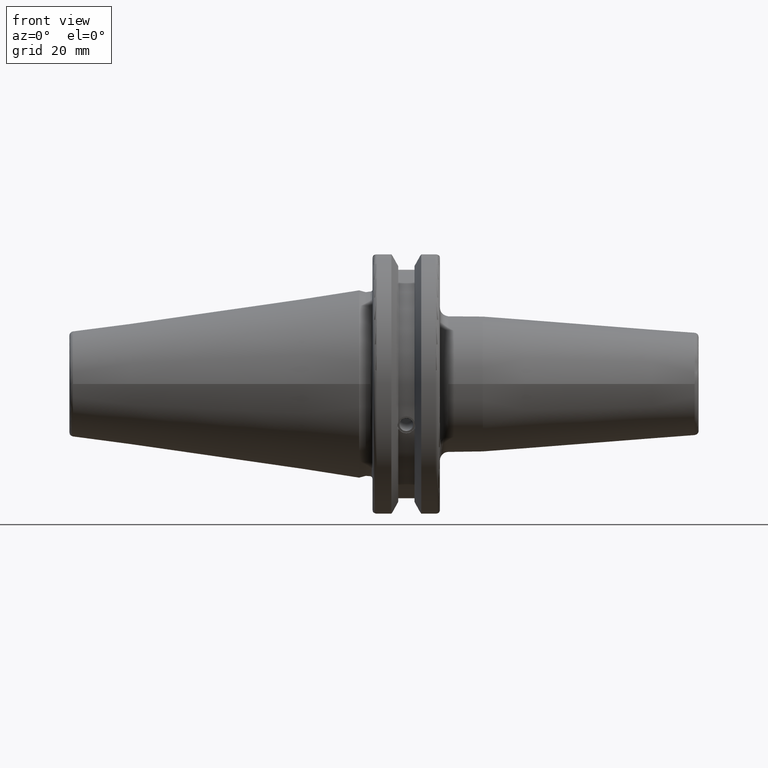
[diagram: clean part render]
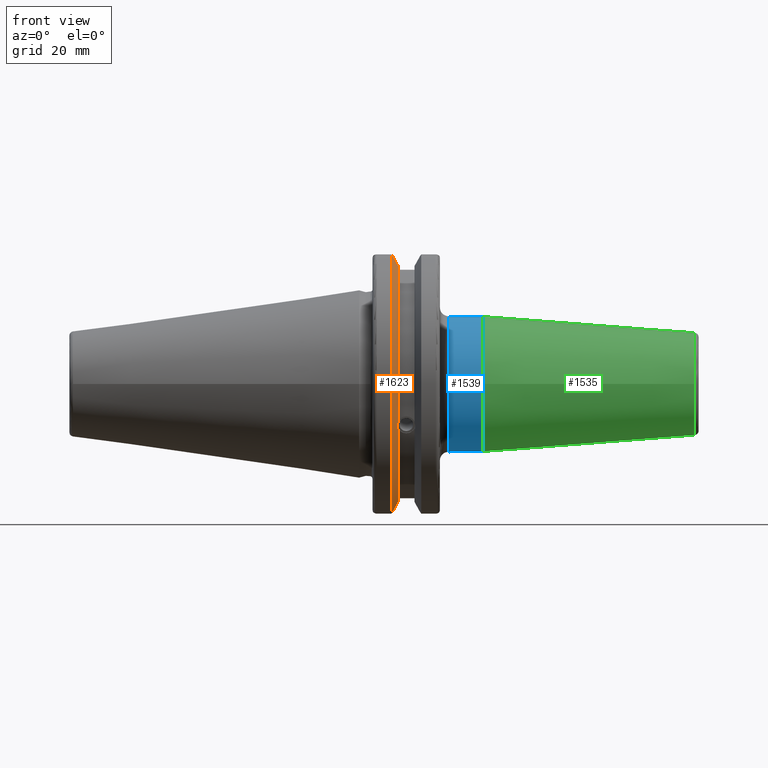
[diagram: same view with three faces highlighted in distinct colors, each labeled with its STEP entity id]
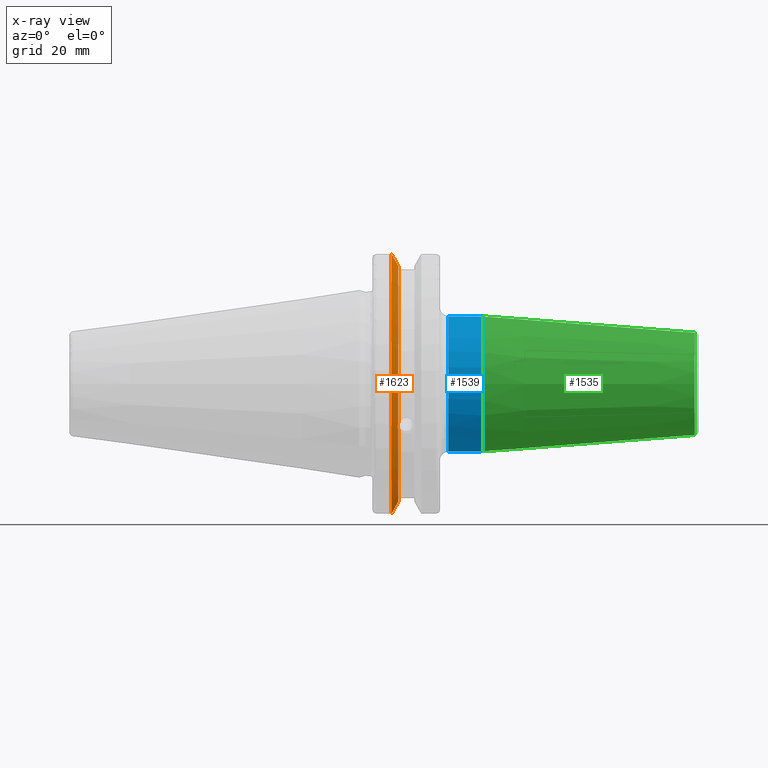
[diagram: x-ray of the same camera — body ghosted, the three highlighted faces saturated]
A machine part, front view with three faces highlighted in distinct colors.
The next image is the same camera in x-ray (body ghosted, the three faces saturated) — at least one of them is partly hidden behind the body in this view.
Their STEP definitions:

[orange] entity #1623 — the highlighted conical surface has half-angle 60 deg.
#25=(
BOUNDED_CURVE()
B_SPLINE_CURVE(2,(#2928,#2929,#2930),.UNSPECIFIED.,.F.,.F.)
B_SPLINE_CURVE_WITH_KNOTS((3,3),(0.,0.276549142796136),.UNSPECIFIED.)
CURVE()
GEOMETRIC_REPRESENTATION_ITEM()
RATIONAL_B_SPLINE_CURVE((1.,1.00095203903316,1.00031614444813))
REPRESENTATION_ITEM('')
);
#26=(
BOUNDED_CURVE()
B_SPLINE_CURVE(2,(#2940,#2941,#2942),.UNSPECIFIED.,.F.,.F.)
B_SPLINE_CURVE_WITH_KNOTS((3,3),(0.0550586467392022,0.33160778953585),
 .UNSPECIFIED.)
CURVE()
GEOMETRIC_REPRESENTATION_ITEM()
RATIONAL_B_SPLINE_CURVE((1.00031614445148,1.00095203904325,1.))
REPRESENTATION_ITEM('')
);
#27=(
BOUNDED_CURVE()
B_SPLINE_CURVE(2,(#2975,#2976,#2977),.UNSPECIFIED.,.F.,.F.)
B_SPLINE_CURVE_WITH_KNOTS((3,3),(0.,0.0639048713676282),.UNSPECIFIED.)
CURVE()
GEOMETRIC_REPRESENTATION_ITEM()
RATIONAL_B_SPLINE_CURVE((1.,1.00028444218284,1.00047644010574))
REPRESENTATION_ITEM('')
);
#28=(
BOUNDED_CURVE()
B_SPLINE_CURVE(2,(#2983,#2984,#2985),.UNSPECIFIED.,.F.,.F.)
B_SPLINE_CURVE_WITH_KNOTS((3,3),(0.329353533631205,0.393258405001025),
 .UNSPECIFIED.)
CURVE()
GEOMETRIC_REPRESENTATION_ITEM()
RATIONAL_B_SPLINE_CURVE((1.00047644010572,1.00028444218283,1.))
REPRESENTATION_ITEM('')
);
#37=B_SPLINE_CURVE_WITH_KNOTS('',3,(#2538,#2539,#2540,#2541,#2542,#2543,
#2544,#2545,#2546,#2547,#2548,#2549,#2550,#2551),.UNSPECIFIED.,.F.,.F.,
(4,2,2,2,2,2,4),(0.451995700189024,0.464547828547663,0.504528771685167,
0.544509714822672,0.584490657960178,0.624471601097683,0.63702372945632),
 .UNSPECIFIED.);
#293=CONICAL_SURFACE('',#1834,30.3546886482472,1.0471975511966);
#463=FACE_OUTER_BOUND('',#574,.T.);
#574=EDGE_LOOP('',(#1512,#1513,#1514,#1515,#1516,#1517,#1518,#1519));
#610=CIRCLE('',#1724,28.9593772964944);
#634=CIRCLE('',#1784,31.75);
#652=CIRCLE('',#1835,28.9593772964944);
#702=VERTEX_POINT('',#2535);
#703=VERTEX_POINT('',#2537);
#720=VERTEX_POINT('',#2630);
#782=VERTEX_POINT('',#2925);
#783=VERTEX_POINT('',#2927);
#786=VERTEX_POINT('',#2939);
#790=VERTEX_POINT('',#2973);
#791=VERTEX_POINT('',#2979);
#875=EDGE_CURVE('',#703,#702,#37,.T.);
#899=EDGE_CURVE('',#703,#720,#610,.T.);
#986=EDGE_CURVE('',#783,#782,#25,.T.);
#992=EDGE_CURVE('',#786,#720,#26,.T.);
#1000=EDGE_CURVE('',#790,#782,#27,.T.);
#1002=EDGE_CURVE('',#790,#791,#634,.T.);
#1003=EDGE_CURVE('',#786,#791,#28,.T.);
#1047=EDGE_CURVE('',#783,#702,#652,.T.);
#1512=ORIENTED_EDGE('',*,*,#875,.T.);
#1513=ORIENTED_EDGE('',*,*,#1047,.F.);
#1514=ORIENTED_EDGE('',*,*,#986,.T.);
#1515=ORIENTED_EDGE('',*,*,#1000,.F.);
#1516=ORIENTED_EDGE('',*,*,#1002,.T.);
#1517=ORIENTED_EDGE('',*,*,#1003,.F.);
#1518=ORIENTED_EDGE('',*,*,#992,.T.);
#1519=ORIENTED_EDGE('',*,*,#899,.F.);
#1623=ADVANCED_FACE('',(#463),#293,.T.);
#1724=AXIS2_PLACEMENT_3D('',#2631,#2022,#2023);
#1784=AXIS2_PLACEMENT_3D('',#2981,#2185,#2186);
#1834=AXIS2_PLACEMENT_3D('',#3101,#2306,#2307);
#1835=AXIS2_PLACEMENT_3D('',#3102,#2308,#2309);
#2022=DIRECTION('center_axis',(1.,0.,0.));
#2023=DIRECTION('ref_axis',(0.,0.,-1.));
#2185=DIRECTION('center_axis',(1.,0.,0.));
#2186=DIRECTION('ref_axis',(0.,0.,-1.));
#2306=DIRECTION('center_axis',(-1.,0.,0.));
#2307=DIRECTION('ref_axis',(0.,-1.,-1.22464679914735E-16));
#2308=DIRECTION('center_axis',(1.,0.,0.));
#2309=DIRECTION('ref_axis',(0.,0.,-1.));
#2535=CARTESIAN_POINT('',(9.2191,-27.4956274489925,-9.09043478536245));
#2537=CARTESIAN_POINT('',(9.2191,-26.9060914640648,-10.7101715919071));
#2538=CARTESIAN_POINT('Ctrl Pts',(9.2191,-26.9060914640648,-10.7101715919071));
#2539=CARTESIAN_POINT('Ctrl Pts',(9.20497959280038,-26.9406927482839,-10.6893765730703));
#2540=CARTESIAN_POINT('Ctrl Pts',(9.19150701821433,-26.9744191989197,-10.6676007180673));
#2541=CARTESIAN_POINT('Ctrl Pts',(9.13811855884095,-27.1113422433189,-10.5723885976054));
#2542=CARTESIAN_POINT('Ctrl Pts',(9.09998029158246,-27.2180531796526,-10.4801333026531));
#2543=CARTESIAN_POINT('Ctrl Pts',(9.04778935539424,-27.3968610665578,-10.2639559818059));
#2544=CARTESIAN_POINT('Ctrl Pts',(9.0341,-27.4684373304961,-10.139516340139));
#2545=CARTESIAN_POINT('Ctrl Pts',(9.0341,-27.559599249844,-9.8890510252165));
#2546=CARTESIAN_POINT('Ctrl Pts',(9.04778935539424,-27.5847569104122,-9.74771639360671));
#2547=CARTESIAN_POINT('Ctrl Pts',(9.09998029158246,-27.5867382255984,-9.46717946402648));
#2548=CARTESIAN_POINT('Ctrl Pts',(9.13811855884095,-27.5642934663232,-9.32791534028655));
#2549=CARTESIAN_POINT('Ctrl Pts',(9.19150701821434,-27.5206055003512,-9.16696618806877));
#2550=CARTESIAN_POINT('Ctrl Pts',(9.20497959280038,-27.5087667900418,-9.12860597076217));
#2551=CARTESIAN_POINT('Ctrl Pts',(9.2191,-27.4956274489925,-9.09043478536245));
#2630=CARTESIAN_POINT('',(9.2191,-8.19,-27.7771386827498));
#2631=CARTESIAN_POINT('Origin',(9.2191,0.,0.));
#2925=CARTESIAN_POINT('',(7.88668530351257,-8.19,30.1755016258903));
#2927=CARTESIAN_POINT('',(9.2191,-8.19,27.7771386827498));
#2928=CARTESIAN_POINT('Ctrl Pts',(9.2191,-8.19,27.7771386827498));
#2929=CARTESIAN_POINT('Ctrl Pts',(8.58046356152393,-8.19,28.9303689539705));
#2930=CARTESIAN_POINT('Ctrl Pts',(7.88668530351257,-8.19,30.1755016258903));
#2939=CARTESIAN_POINT('',(7.88668530351256,-8.19,-30.1755016258903));
#2940=CARTESIAN_POINT('Ctrl Pts',(7.88668530351256,-8.19,-30.1755016258903));
#2941=CARTESIAN_POINT('Ctrl Pts',(8.5804635615235,-8.19,-28.9303689539712));
#2942=CARTESIAN_POINT('Ctrl Pts',(9.2191,-8.19,-27.7771386827498));
#2973=CARTESIAN_POINT('',(7.60793323092436,-8.67204822802685,30.5427254764662));
#2975=CARTESIAN_POINT('Ctrl Pts',(7.60793323092436,-8.67204822802686,30.5427254764662));
#2976=CARTESIAN_POINT('Ctrl Pts',(7.74899148121626,-8.42917748262648,30.357706789263));
#2977=CARTESIAN_POINT('Ctrl Pts',(7.88668530351257,-8.19,30.1755016258903));
#2979=CARTESIAN_POINT('',(7.60793323092436,-8.67204822802685,-30.5427254764662));
#2981=CARTESIAN_POINT('Origin',(7.60793323092436,0.,0.));
#2983=CARTESIAN_POINT('Ctrl Pts',(7.88668530351256,-8.19,-30.1755016258903));
#2984=CARTESIAN_POINT('Ctrl Pts',(7.74899148121159,-8.42917748263467,-30.3577067892692));
#2985=CARTESIAN_POINT('Ctrl Pts',(7.60793323092435,-8.67204822802687,-30.5427254764662));
#3101=CARTESIAN_POINT('Origin',(8.41351661546218,0.,0.));
#3102=CARTESIAN_POINT('Origin',(9.2191,0.,0.));

[blue] entity #1539 — the highlighted cylindrical surface (bore or boss wall) has radius 15.9996 mm, axis along (1, 0, 0).
#62=CYLINDRICAL_SURFACE('',#1670,15.9996207408271);
#94=LINE('',#2351,#189);
#189=VECTOR('',#1887,15.9996207408271);
#379=FACE_OUTER_BOUND('',#474,.T.);
#474=EDGE_LOOP('',(#1077,#1078,#1079,#1080,#1081));
#581=CIRCLE('',#1658,15.9996207408271);
#586=CIRCLE('',#1666,15.9996207408271);
#589=CIRCLE('',#1669,15.9996207408271);
#659=VERTEX_POINT('',#2329);
#663=VERTEX_POINT('',#2343);
#664=VERTEX_POINT('',#2344);
#818=EDGE_CURVE('',#659,#659,#581,.T.);
#824=EDGE_CURVE('',#663,#664,#586,.T.);
#827=EDGE_CURVE('',#664,#663,#589,.T.);
#828=EDGE_CURVE('',#659,#663,#94,.T.);
#1077=ORIENTED_EDGE('',*,*,#818,.F.);
#1078=ORIENTED_EDGE('',*,*,#828,.T.);
#1079=ORIENTED_EDGE('',*,*,#827,.F.);
#1080=ORIENTED_EDGE('',*,*,#824,.F.);
#1081=ORIENTED_EDGE('',*,*,#828,.F.);
#1539=ADVANCED_FACE('',(#379),#62,.T.);
#1658=AXIS2_PLACEMENT_3D('',#2331,#1860,#1861);
#1666=AXIS2_PLACEMENT_3D('',#2345,#1877,#1878);
#1669=AXIS2_PLACEMENT_3D('',#2349,#1883,#1884);
#1670=AXIS2_PLACEMENT_3D('',#2350,#1885,#1886);
#1860=DIRECTION('center_axis',(1.,0.,0.));
#1861=DIRECTION('ref_axis',(0.,0.,-1.));
#1877=DIRECTION('center_axis',(-1.,0.,0.));
#1878=DIRECTION('ref_axis',(0.,-1.,-1.22464679914735E-16));
#1883=DIRECTION('center_axis',(-1.,0.,0.));
#1884=DIRECTION('ref_axis',(0.,-1.,-1.22464679914735E-16));
#1885=DIRECTION('center_axis',(1.,0.,0.));
#1886=DIRECTION('ref_axis',(0.,1.,0.));
#1887=DIRECTION('',(-1.,0.,0.));
#2329=CARTESIAN_POINT('',(29.18,-15.9996207408271,-1.95938843278256E-15));
#2331=CARTESIAN_POINT('Origin',(29.18,0.,0.));
#2343=CARTESIAN_POINT('',(21.05,-15.9996207408271,-1.95938843278256E-15));
#2344=CARTESIAN_POINT('',(21.05,-1.95938843278256E-15,-15.9996207408271));
#2345=CARTESIAN_POINT('Origin',(21.05,0.,0.));
#2349=CARTESIAN_POINT('Origin',(21.05,0.,0.));
#2350=CARTESIAN_POINT('Origin',(24.115,0.,0.));
#2351=CARTESIAN_POINT('',(24.115,-15.9996207408271,-1.95938843278256E-15));

[green] entity #1535 — the highlighted conical surface has half-angle 4.5 deg.
#92=LINE('',#2330,#187);
#187=VECTOR('',#1859,13.9998103704136);
#282=CONICAL_SURFACE('',#1657,13.9998103704136,0.0785398163397453);
#375=FACE_OUTER_BOUND('',#470,.T.);
#470=EDGE_LOOP('',(#1057,#1058,#1059,#1060,#1061));
#578=CIRCLE('',#1651,12.0725268420749);
#579=CIRCLE('',#1652,12.0725268420749);
#581=CIRCLE('',#1658,15.9996207408271);
#654=VERTEX_POINT('',#2316);
#655=VERTEX_POINT('',#2318);
#659=VERTEX_POINT('',#2329);
#812=EDGE_CURVE('',#654,#655,#578,.T.);
#813=EDGE_CURVE('',#655,#654,#579,.T.);
#817=EDGE_CURVE('',#655,#659,#92,.T.);
#818=EDGE_CURVE('',#659,#659,#581,.T.);
#1057=ORIENTED_EDGE('',*,*,#813,.F.);
#1058=ORIENTED_EDGE('',*,*,#817,.T.);
#1059=ORIENTED_EDGE('',*,*,#818,.T.);
#1060=ORIENTED_EDGE('',*,*,#817,.F.);
#1061=ORIENTED_EDGE('',*,*,#812,.F.);
#1535=ADVANCED_FACE('',(#375),#282,.T.);
#1651=AXIS2_PLACEMENT_3D('',#2319,#1845,#1846);
#1652=AXIS2_PLACEMENT_3D('',#2320,#1847,#1848);
#1657=AXIS2_PLACEMENT_3D('',#2328,#1857,#1858);
#1658=AXIS2_PLACEMENT_3D('',#2331,#1860,#1861);
#1845=DIRECTION('center_axis',(1.,0.,0.));
#1846=DIRECTION('ref_axis',(0.,-1.,3.06161699786838E-17));
#1847=DIRECTION('center_axis',(1.,0.,0.));
#1848=DIRECTION('ref_axis',(0.,-1.,3.06161699786838E-17));
#1857=DIRECTION('center_axis',(-1.,0.,0.));
#1858=DIRECTION('ref_axis',(0.,1.,0.));
#1859=DIRECTION('',(-0.996917333733128,-0.0784590957278454,-9.60846804471016E-18));
#1860=DIRECTION('center_axis',(1.,0.,0.));
#1861=DIRECTION('ref_axis',(0.,0.,-1.));
#2316=CARTESIAN_POINT('',(79.0784590957279,-1.47845813547676E-15,12.0725268420749));
#2318=CARTESIAN_POINT('',(79.0784590957279,-12.0725268420749,-1.47845813547676E-15));
#2319=CARTESIAN_POINT('Origin',(79.0784590957279,0.,-1.84807266934594E-15));
#2320=CARTESIAN_POINT('Origin',(79.0784590957279,0.,-1.84807266934594E-15));
#2328=CARTESIAN_POINT('Origin',(54.59,0.,0.));
#2329=CARTESIAN_POINT('',(29.18,-15.9996207408271,-1.95938843278256E-15));
#2330=CARTESIAN_POINT('',(54.59,-13.9998103704136,-1.71448229587969E-15));
#2331=CARTESIAN_POINT('Origin',(29.18,0.,0.));